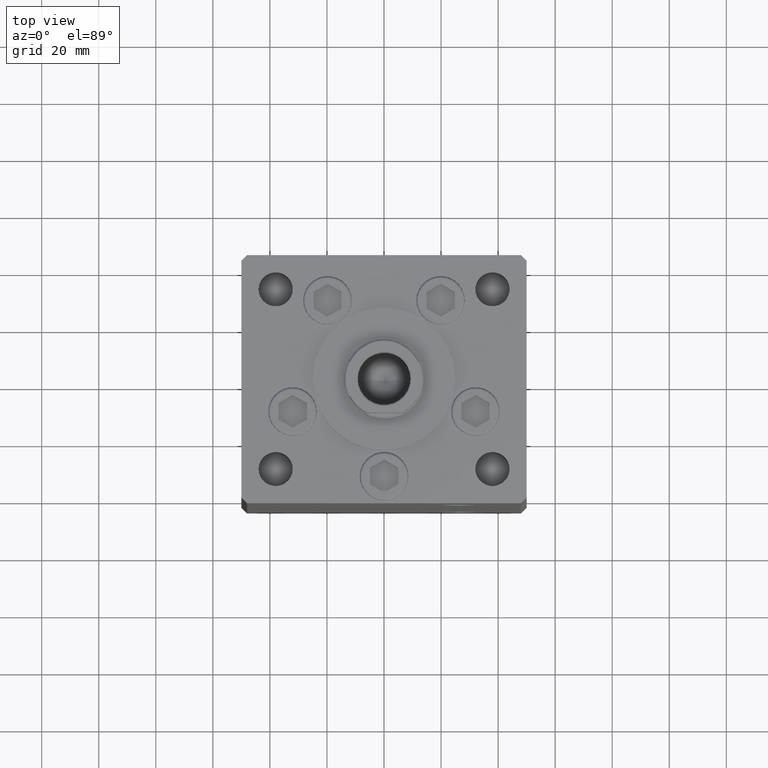
[diagram: clean part render]
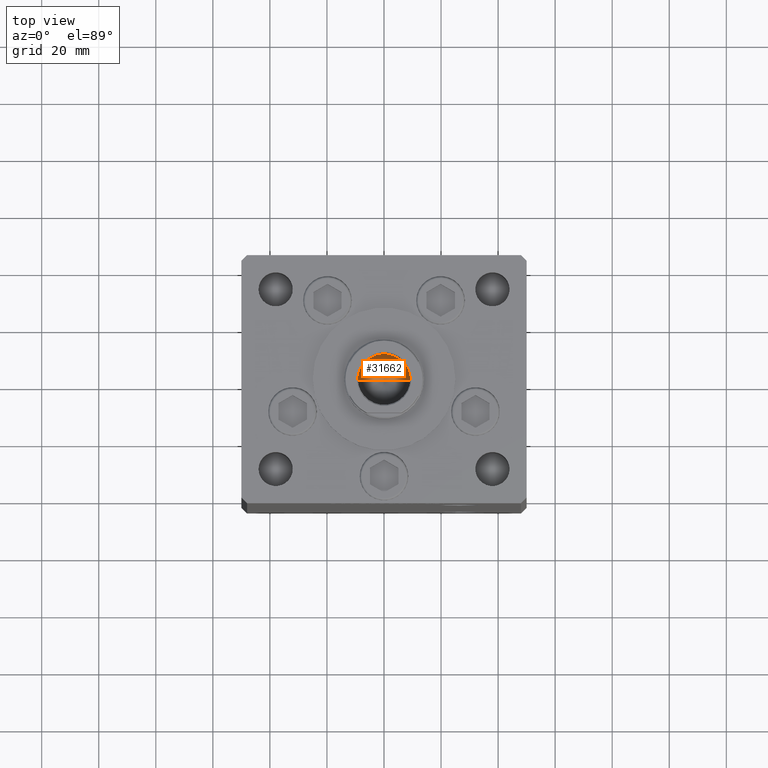
[diagram: same view with one face highlighted and labeled with its STEP entity id]
A machine part, top view. The second image highlights one B-rep face of the part: STEP entity #31662.
In plain terms, the highlighted conical surface has half-angle 59 deg.
Its self-contained STEP definition (entity closure, byte-faithful):
#669 = VERTEX_POINT ( 'NONE', #24945 ) ;
#4070 = EDGE_CURVE ( 'NONE', #49021, #669, #10325, .T. ) ;
#5069 = AXIS2_PLACEMENT_3D ( 'NONE', #47502, #35871, #51981 ) ;
#8998 = ORIENTED_EDGE ( 'NONE', *, *, #26965, .T. ) ;
#10325 = LINE ( 'NONE', #17719, #42804 ) ;
#11342 = FACE_OUTER_BOUND ( 'NONE', #26662, .T. ) ;
#11363 = EDGE_CURVE ( 'NONE', #49021, #31615, #25178, .T. ) ;
#15052 = DIRECTION ( 'NONE',  ( 1.000000000000000000, 0.000000000000000000, 0.000000000000000000 ) ) ;
#17719 = CARTESIAN_POINT ( 'NONE',  ( 9.249999999999994671, 0.000000000000000000, 150.2500000000000000 ) ) ;
#18678 = AXIS2_PLACEMENT_3D ( 'NONE', #50934, #23452, #15052 ) ;
#19257 = CARTESIAN_POINT ( 'NONE',  ( -9.249999999999994671, 1.132798289211300909E-15, 150.2500000000000000 ) ) ;
#19388 = CIRCLE ( 'NONE', #5069, 9.249999999999994671 ) ;
#19625 = ORIENTED_EDGE ( 'NONE', *, *, #4070, .T. ) ;
#20717 = DIRECTION ( 'NONE',  ( -0.8571673007021112234, 1.049727191138617340E-16, 0.5150380749100560429 ) ) ;
#23452 = DIRECTION ( 'NONE',  ( -0.000000000000000000, -0.000000000000000000, 1.000000000000000000 ) ) ;
#24945 = CARTESIAN_POINT ( 'NONE',  ( 9.249999999999994671, 0.000000000000000000, 150.2500000000000000 ) ) ;
#25178 = LINE ( 'NONE', #33896, #32731 ) ;
#26662 = EDGE_LOOP ( 'NONE', ( #49060, #19625, #8998 ) ) ;
#26965 = EDGE_CURVE ( 'NONE', #669, #31615, #19388, .T. ) ;
#29837 = DIRECTION ( 'NONE',  ( 0.8571673007021112234, 0.000000000000000000, 0.5150380749100560429 ) ) ;
#31615 = VERTEX_POINT ( 'NONE', #19257 ) ;
#31662 = ADVANCED_FACE ( 'NONE', ( #11342 ), #34676, .F. ) ;
#32731 = VECTOR ( 'NONE', #20717, 1000.000000000000000 ) ;
#33896 = CARTESIAN_POINT ( 'NONE',  ( -9.249999999999994671, 1.132798289211300909E-15, 150.2500000000000000 ) ) ;
#34676 = CONICAL_SURFACE ( 'NONE', #18678, 9.249999999999994671, 1.029744258676652313 ) ;
#35871 = DIRECTION ( 'NONE',  ( -0.000000000000000000, -0.000000000000000000, 1.000000000000000000 ) ) ;
#42804 = VECTOR ( 'NONE', #29837, 1000.000000000000000 ) ;
#46575 = CARTESIAN_POINT ( 'NONE',  ( -1.046994375366439223E-14, 0.000000000000000000, 144.6920392739950501 ) ) ;
#47502 = CARTESIAN_POINT ( 'NONE',  ( 0.000000000000000000, 0.000000000000000000, 150.2500000000000000 ) ) ;
#49021 = VERTEX_POINT ( 'NONE', #46575 ) ;
#49060 = ORIENTED_EDGE ( 'NONE', *, *, #11363, .F. ) ;
#50934 = CARTESIAN_POINT ( 'NONE',  ( 0.000000000000000000, 0.000000000000000000, 150.2500000000000000 ) ) ;
#51981 = DIRECTION ( 'NONE',  ( 1.000000000000000000, 0.000000000000000000, 0.000000000000000000 ) ) ;